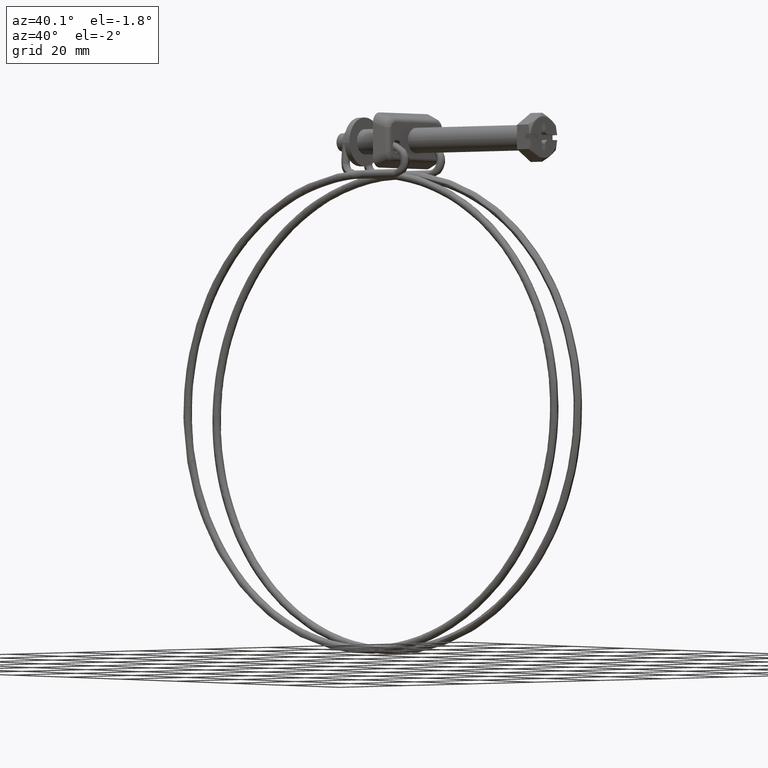
[diagram: clean part render]
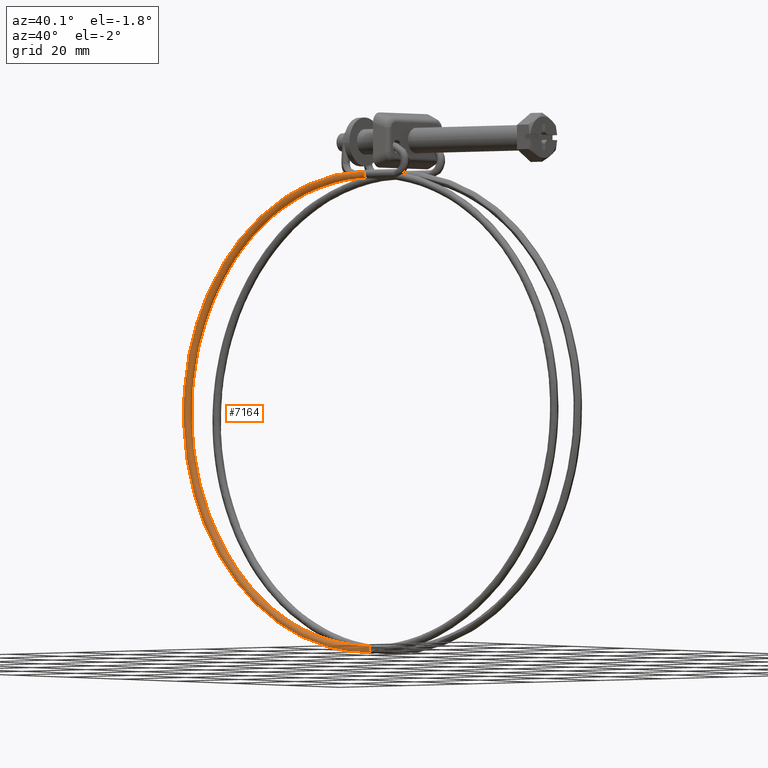
[diagram: same view with one face highlighted and labeled with its STEP entity id]
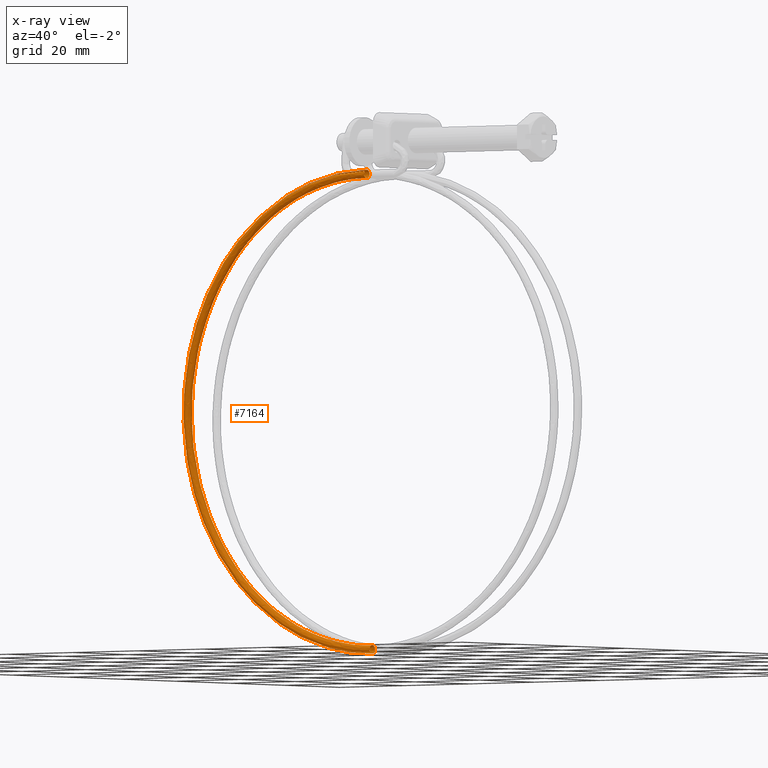
[diagram: x-ray of the same camera — body ghosted, the highlighted face saturated]
A machine part, auxiliary view. The second image highlights one B-rep face of the part: STEP entity #7164.
The next image is the same camera in x-ray: the body ghosted, the highlighted face saturated — about 0% of this face is hidden behind the body in this view.
In plain terms, the highlighted face is a freeform B-spline surface patch.
Its self-contained STEP definition (entity closure, byte-faithful):
#4390=CARTESIAN_POINT('',(-45.149999998808632,-5.310976448653545,-7.892637520432912));
#4391=VERTEX_POINT('',#4390);
#4392=CARTESIAN_POINT('',(-45.150000000000063,-5.975868420241270,-6.907995056497095));
#4393=VERTEX_POINT('',#4392);
#4394=CARTESIAN_POINT('',(-45.149999998808632,-5.310976448653545,-7.892637520432912));
#4395=CARTESIAN_POINT('',(-45.149999998829692,-5.309785185155874,-7.866484783872031));
#4396=CARTESIAN_POINT('',(-45.149999998851392,-5.309644575459286,-7.840279786883396));
#4397=CARTESIAN_POINT('',(-45.149999999096387,-5.319957059162829,-7.552379721657101));
#4398=CARTESIAN_POINT('',(-45.149999999375012,-5.436972750022997,-7.296118689215141));
#4399=CARTESIAN_POINT('',(-45.149999999763999,-5.728292555442175,-7.024810893571111));
#4400=CARTESIAN_POINT('',(-45.149999999890113,-5.847547963914315,-6.953617412476815));
#4401=CARTESIAN_POINT('',(-45.150000000000063,-5.975868420241270,-6.907995056497095));
#4402=B_SPLINE_CURVE_WITH_KNOTS('',3,(#4394,#4395,#4396,#4397,#4398,#4399,#4400,#4401),.UNSPECIFIED.,.F.,.U.,(4,2,2,4),(0.737494791658560,0.750000000000000,0.875000000000000,0.940036109681438),.UNSPECIFIED.);
#4403=EDGE_CURVE('',#4391,#4393,#4402,.T.);
#4459=CARTESIAN_POINT('',(-45.150000000000027,-6.345886880956226,-6.850644943452951));
#4460=VERTEX_POINT('',#4459);
#4461=CARTESIAN_POINT('',(-45.150000000000063,-5.975868420241270,-6.907995056497095));
#4462=CARTESIAN_POINT('',(-45.150000000000063,-6.094243663932558,-6.866122050416879));
#4463=CARTESIAN_POINT('',(-45.150000000000041,-6.220325795856351,-6.845986976392022));
#4464=CARTESIAN_POINT('',(-45.150000000000027,-6.345886880956226,-6.850644943452951));
#4465=B_SPLINE_CURVE_WITH_KNOTS('',3,(#4461,#4462,#4463,#4464),.UNSPECIFIED.,.F.,.U.,(4,4),(0.940036109681439,1.0),.UNSPECIFIED.);
#4466=EDGE_CURVE('',#4393,#4460,#4465,.T.);
#4468=CARTESIAN_POINT('',(-45.150000000000027,-7.063047293310707,-7.192061947471702));
#4469=VERTEX_POINT('',#4468);
#4479=CARTESIAN_POINT('',(-45.150000000000063,-6.274124154055738,-8.849357056546729));
#4480=VERTEX_POINT('',#4479);
#4481=CARTESIAN_POINT('',(-45.150000000000027,-7.063047293310707,-7.192061947471702));
#4482=CARTESIAN_POINT('',(-45.150000000000063,-7.228084872618280,-7.381473228365365));
#4483=CARTESIAN_POINT('',(-45.150000000000070,-7.318379524562507,-7.634717340918451));
#4484=CARTESIAN_POINT('',(-45.150000000000063,-7.299967855068201,-8.147513167247430));
#4485=CARTESIAN_POINT('',(-45.150000000000070,-7.182928284423263,-8.403665846680108));
#4486=CARTESIAN_POINT('',(-45.150000000000063,-6.799641728569234,-8.760382952955649));
#4487=CARTESIAN_POINT('',(-45.150000000000070,-6.535754957853087,-8.858750775531403));
#4488=CARTESIAN_POINT('',(-45.150000000000063,-6.274124154055738,-8.849357056546729));
#4489=B_SPLINE_CURVE_WITH_KNOTS('',3,(#4481,#4482,#4483,#4484,#4485,#4486,#4487,#4488),.UNSPECIFIED.,.F.,.U.,(4,2,2,4),(0.130000262351479,0.250000000000000,0.375000000000000,0.500000000000000),.UNSPECIFIED.);
#4490=EDGE_CURVE('',#4469,#4480,#4489,.T.);
#4492=CARTESIAN_POINT('',(-45.150000000000063,-6.274124154055738,-8.849357056546729));
#4493=CARTESIAN_POINT('',(-45.149999999831351,-6.012484647438415,-8.839963733500936));
#4494=CARTESIAN_POINT('',(-45.149999999599473,-5.756320006590457,-8.722924707046202));
#4495=CARTESIAN_POINT('',(-45.149999999163242,-5.417423685828121,-8.358811487846479));
#4496=CARTESIAN_POINT('',(-45.149999998960773,-5.321684467844493,-8.127829187017897));
#4497=CARTESIAN_POINT('',(-45.149999998808632,-5.310976448653545,-7.892637520432912));
#4498=B_SPLINE_CURVE_WITH_KNOTS('',3,(#4492,#4493,#4494,#4495,#4496,#4497),.UNSPECIFIED.,.F.,.U.,(4,2,4),(0.500000000000000,0.625000000000000,0.737494791658560),.UNSPECIFIED.);
#4499=EDGE_CURVE('',#4480,#4391,#4498,.T.);
#6144=CARTESIAN_POINT('',(-45.149999999935943,-3.302485887030367,-119.780271342113590));
#6145=VERTEX_POINT('',#6144);
#6146=CARTESIAN_POINT('',(-45.149999999990129,-4.287435984471163,-120.849920191922910));
#6147=VERTEX_POINT('',#6146);
#6148=CARTESIAN_POINT('',(-45.149999999935943,-3.302485887030367,-119.780271342113590));
#6149=CARTESIAN_POINT('',(-45.149999999936540,-3.300804588166401,-119.803466287267500));
#6150=CARTESIAN_POINT('',(-45.149999999937151,-3.299953544918444,-119.826725569221690));
#6151=CARTESIAN_POINT('',(-45.149999999944967,-3.299960689535963,-120.111797701208100));
#6152=CARTESIAN_POINT('',(-45.149999999954822,-3.407742793961565,-120.371985962488690));
#6153=CARTESIAN_POINT('',(-45.149999999974163,-3.775038524062515,-120.739265955749000));
#6154=CARTESIAN_POINT('',(-45.149999999983542,-4.029889019310383,-120.846533327676200));
#6155=CARTESIAN_POINT('',(-45.149999999990129,-4.287435984471163,-120.849920191922910));
#6156=B_SPLINE_CURVE_WITH_KNOTS('',3,(#6148,#6149,#6150,#6151,#6152,#6153,#6154,#6155),.UNSPECIFIED.,.F.,.U.,(4,2,2,4),(0.738888458198402,0.750000000000000,0.875000000000000,0.997999815404182),.UNSPECIFIED.);
#6157=EDGE_CURVE('',#6145,#6147,#6156,.T.);
#6247=CARTESIAN_POINT('',(-45.150000000000013,-4.300002000000009,-118.850001000000010));
#6248=VERTEX_POINT('',#6247);
#6249=CARTESIAN_POINT('',(-45.150000000000013,-4.300002000000009,-118.850001000000010));
#6250=CARTESIAN_POINT('',(-45.149999999991010,-4.038195655369277,-118.850000495566110));
#6251=CARTESIAN_POINT('',(-45.149999999978633,-3.777998799462706,-118.957772896960290));
#6252=CARTESIAN_POINT('',(-45.149999999955142,-3.424196145409652,-119.311556064556400));
#6253=CARTESIAN_POINT('',(-45.149999999944150,-3.319730377688063,-119.542534340343100));
#6254=CARTESIAN_POINT('',(-45.149999999935943,-3.302485887030367,-119.780271342113590));
#6255=B_SPLINE_CURVE_WITH_KNOTS('',3,(#6249,#6250,#6251,#6252,#6253,#6254),.UNSPECIFIED.,.F.,.U.,(4,2,4),(0.500000000000000,0.625000000000000,0.738888458198402),.UNSPECIFIED.);
#6256=EDGE_CURVE('',#6248,#6145,#6255,.T.);
#6258=CARTESIAN_POINT('',(-45.150000000000013,-5.028951109210285,-120.534536542634600));
#6259=VERTEX_POINT('',#6258);
#6260=CARTESIAN_POINT('',(-45.150000000000013,-5.028951109210285,-120.534536542634600));
#6261=CARTESIAN_POINT('',(-45.150000000000013,-5.200678748661184,-120.351169005261300));
#6262=CARTESIAN_POINT('',(-45.150000000000013,-5.300002000000000,-120.101327862820100));
#6263=CARTESIAN_POINT('',(-45.150000000000013,-5.300002000000000,-119.588201612201000));
#6264=CARTESIAN_POINT('',(-45.150000000000013,-5.192228903609820,-119.328014341236600));
#6265=CARTESIAN_POINT('',(-45.150000000000013,-4.821988658763289,-118.957774096390200));
#6266=CARTESIAN_POINT('',(-45.150000000000013,-4.561801387799160,-118.850001000000010));
#6267=CARTESIAN_POINT('',(-45.150000000000013,-4.300002000000009,-118.850001000000010));
#6268=B_SPLINE_CURVE_WITH_KNOTS('',3,(#6260,#6261,#6262,#6263,#6264,#6265,#6266,#6267),.UNSPECIFIED.,.F.,.U.,(4,2,2,4),(0.130000262351228,0.250000000000000,0.375000000000000,0.500000000000000),.UNSPECIFIED.);
#6269=EDGE_CURVE('',#6259,#6248,#6268,.T.);
#6271=CARTESIAN_POINT('',(-45.150000000000013,-4.300002000000009,-120.850001000000010));
#6272=VERTEX_POINT('',#6271);
#6282=CARTESIAN_POINT('',(-45.149999999990129,-4.287435984471163,-120.849920191922910));
#6283=CARTESIAN_POINT('',(-45.149999999993419,-4.291624042898426,-120.849974639911810));
#6284=CARTESIAN_POINT('',(-45.149999999996723,-4.295812815059945,-120.850001617475900));
#6285=CARTESIAN_POINT('',(-45.150000000000013,-4.300002000000009,-120.850001000000010));
#6286=B_SPLINE_CURVE_WITH_KNOTS('',3,(#6282,#6283,#6284,#6285),.UNSPECIFIED.,.F.,.U.,(4,4),(0.997999815404182,1.0),.UNSPECIFIED.);
#6287=EDGE_CURVE('',#6147,#6272,#6286,.T.);
#6823=CARTESIAN_POINT('',(-45.150000000000013,-7.063046210862019,-7.192060705160640));
#6824=CARTESIAN_POINT('',(-45.150000000000013,-7.228084477801457,-7.381472121046641));
#6825=CARTESIAN_POINT('',(-45.150000000000013,-7.318379544278305,-7.634716791804443));
#6826=CARTESIAN_POINT('',(-45.150000000000013,-7.299967855068440,-8.147513167247249));
#6827=CARTESIAN_POINT('',(-45.150000000000013,-7.182928284423550,-8.403665846679949));
#6828=CARTESIAN_POINT('',(-45.150000000000013,-6.799641728569591,-8.760382952955560));
#6829=CARTESIAN_POINT('',(-45.150000000000013,-6.535754957853460,-8.858750775531361));
#6830=CARTESIAN_POINT('',(-45.150000000000013,-6.012493350258760,-8.839963337562111));
#6831=CARTESIAN_POINT('',(-45.150000000000013,-5.756340670826060,-8.722923766917230));
#6832=CARTESIAN_POINT('',(-45.150000000000013,-5.399623564550450,-8.339637211063280));
#6833=CARTESIAN_POINT('',(-45.150000000000013,-5.301255741974650,-8.075750440347139));
#6834=CARTESIAN_POINT('',(-45.150000000000013,-5.320043179943900,-7.552488832752430));
#6835=CARTESIAN_POINT('',(-45.150000000000013,-5.437082750588780,-7.296336153319750));
#6836=CARTESIAN_POINT('',(-45.150000000000013,-5.820369306442751,-6.939619047044130));
#6837=CARTESIAN_POINT('',(-45.150000000000013,-6.084256077158881,-6.841251224468330));
#6838=CARTESIAN_POINT('',(-45.150000000000013,-6.345886880956230,-6.850644943452954));
#6839=CARTESIAN_POINT('',(-52.569601323664919,-7.063045612869111,-7.192094025868835));
#6840=CARTESIAN_POINT('',(-52.545190733792772,-7.228083882754371,-7.381505277632877));
#6841=CARTESIAN_POINT('',(-52.512247266985959,-7.318378953196755,-7.634749727338893));
#6842=CARTESIAN_POINT('',(-52.445067019135003,-7.299967272067920,-8.147545652938661));
#6843=CARTESIAN_POINT('',(-52.411255670750897,-7.182927705470230,-8.403698106511040));
#6844=CARTESIAN_POINT('',(-52.363652520550303,-6.799641155313990,-8.760414895408751));
#6845=CARTESIAN_POINT('',(-52.350153850870598,-6.535754386210360,-8.858782628087749));
#6846=CARTESIAN_POINT('',(-52.351384103616013,-6.012492778478149,-8.839995198309250));
#6847=CARTESIAN_POINT('',(-52.366105450224900,-5.756340097282960,-8.722955725695408));
#6848=CARTESIAN_POINT('',(-52.415448440503702,-5.399622985096880,-8.339669498836289));
#6849=CARTESIAN_POINT('',(-52.449766238241487,-5.301255158411570,-8.075782957438731));
#6850=CARTESIAN_POINT('',(-52.518317511558699,-5.320042588139490,-7.552521808965549));
#6851=CARTESIAN_POINT('',(-52.552128859865398,-5.437082154711059,-7.296369356444190));
#6852=CARTESIAN_POINT('',(-52.599732010063299,-5.820368704811860,-6.939652570380449));
#6853=CARTESIAN_POINT('',(-52.613230679704003,-6.084255473903500,-6.841284838625090));
#6854=CARTESIAN_POINT('',(-52.612615553388601,-6.345886277776811,-6.850678553465274));
#6855=CARTESIAN_POINT('',(-59.983811976142420,-7.036574289349323,-8.667110466495776));
#6856=CARTESIAN_POINT('',(-59.935008696228842,-7.201699651830744,-8.851668805982547));
#6857=CARTESIAN_POINT('',(-59.869145919388536,-7.292112258655011,-9.098363976572557));
#6858=CARTESIAN_POINT('',(-59.734834685715612,-7.273940264597161,-9.597804227383550));
#6859=CARTESIAN_POINT('',(-59.667236782376399,-7.157021330845880,-9.847234863003349));
#6860=CARTESIAN_POINT('',(-59.572065388459187,-6.773904620216510,-10.194487973125900));
#6861=CARTESIAN_POINT('',(-59.545077947536299,-6.510066011963880,-10.290172121367940));
#6862=CARTESIAN_POINT('',(-59.547537550697903,-5.986800014894601,-10.271629270288500));
#6863=CARTESIAN_POINT('',(-59.576969449124597,-5.730594810565200,-10.157516454896500));
#6864=CARTESIAN_POINT('',(-59.675619247243603,-5.373701651417510,-9.784039793025222));
#6865=CARTESIAN_POINT('',(-59.744229678050502,-5.275211384971970,-9.526975753698359));
#6866=CARTESIAN_POINT('',(-59.881281957308701,-5.293754236048240,-9.017342844504089));
#6867=CARTESIAN_POINT('',(-59.948879860749599,-5.410673169799510,-8.767912208986020));
#6868=CARTESIAN_POINT('',(-60.044051254666797,-5.793789880428890,-8.420659098761750));
#6869=CARTESIAN_POINT('',(-60.071038695640603,-6.057628488687869,-8.324974950621419));
#6870=CARTESIAN_POINT('',(-60.069808893983499,-6.319261487222510,-8.334246376161143));
#6871=CARTESIAN_POINT('',(-73.691036042301050,-6.934678229661358,-14.344890921574070));
#6872=CARTESIAN_POINT('',(-73.597139032479021,-7.100138807600729,-14.510770621396251));
#6873=CARTESIAN_POINT('',(-73.470419725671505,-7.191003806568837,-14.732257915113941));
#6874=CARTESIAN_POINT('',(-73.212006290144203,-7.173754357101650,-15.180292786618800));
#6875=CARTESIAN_POINT('',(-73.081948617460398,-7.057299733578841,-15.403851454410299));
#6876=CARTESIAN_POINT('',(-72.898839832070010,-6.674836727426730,-15.714679304572551));
#6877=CARTESIAN_POINT('',(-72.846916272500295,-6.411183487998059,-15.800034460737599));
#6878=CARTESIAN_POINT('',(-72.851648523989795,-5.887900596644800,-15.782432981689450));
#6879=CARTESIAN_POINT('',(-72.908275194468914,-5.631493233216160,-15.679584733285299));
#6880=CARTESIAN_POINT('',(-73.098076394043801,-5.273922477451700,-15.343864633002401));
#6881=CARTESIAN_POINT('',(-73.230082159034495,-5.174960946012220,-15.113060088994750));
#6882=CARTESIAN_POINT('',(-73.493769338144006,-5.192562425063550,-14.655881648887121));
#6883=CARTESIAN_POINT('',(-73.623827010726004,-5.309017048586370,-14.432322980993900));
#6884=CARTESIAN_POINT('',(-73.806935796116420,-5.691480054738480,-14.121495130933400));
#6885=CARTESIAN_POINT('',(-73.858859355635303,-5.955133294160780,-14.036139974666600));
#6886=CARTESIAN_POINT('',(-73.856493229966787,-6.216774739837410,-14.044940714190680));
#6887=CARTESIAN_POINT('',(-79.977444432651097,-6.859294202630906,-18.545386568952260));
#6888=CARTESIAN_POINT('',(-79.862868217331041,-7.025002765669289,-18.697448218061769));
#6889=CARTESIAN_POINT('',(-79.708241157166455,-7.116202434501211,-18.900287273475161));
#6890=CARTESIAN_POINT('',(-79.392916595920994,-7.099635463424330,-19.310293564662800));
#6891=CARTESIAN_POINT('',(-79.234215952277509,-6.983524326496590,-19.514712714396449));
#6892=CARTESIAN_POINT('',(-79.010780598307107,-6.601544916670800,-19.798593950309751));
#6893=CARTESIAN_POINT('',(-78.947421765699914,-6.338028809086320,-19.876307943318750));
#6894=CARTESIAN_POINT('',(-78.953196214223311,-5.814733419699250,-19.859402870810399));
#6895=CARTESIAN_POINT('',(-79.022293937435194,-5.558176503363451,-19.764887903871301));
#6896=CARTESIAN_POINT('',(-79.253895594827497,-5.200104476384791,-19.457099285104501));
#6897=CARTESIAN_POINT('',(-79.414973364787599,-5.100794313374460,-19.245720944122102));
#6898=CARTESIAN_POINT('',(-79.736733121160597,-5.117699385901890,-18.827347177604100));
#6899=CARTESIAN_POINT('',(-79.895433764854999,-5.233810522829629,-18.622928027819551));
#6900=CARTESIAN_POINT('',(-80.118869118876205,-5.615789932649060,-18.339046791855449));
#6901=CARTESIAN_POINT('',(-80.182227951534301,-5.879306040246259,-18.261332798948150));
#6902=CARTESIAN_POINT('',(-80.179340727221742,-6.140953734936620,-18.269785335202329));
#6903=CARTESIAN_POINT('',(-90.468374557061011,-6.671017474330951,-29.036409786810939));
#6904=CARTESIAN_POINT('',(-90.319291330350708,-6.837345321555898,-29.153964118268060));
#6905=CARTESIAN_POINT('',(-90.118095113535901,-6.929380749317962,-29.310233603723599));
#6906=CARTESIAN_POINT('',(-89.707803999124692,-6.914518106810380,-29.625272499057900));
#6907=CARTESIAN_POINT('',(-89.501307354206602,-6.799264746521030,-29.781895223576900));
#6908=CARTESIAN_POINT('',(-89.210579794140102,-6.418493004304830,-29.998483656194900));
#6909=CARTESIAN_POINT('',(-89.128139130485010,-6.155319351062020,-30.057115648966601));
#6910=CARTESIAN_POINT('',(-89.135652674494608,-5.631992750785461,-30.041949687205150));
#6911=CARTESIAN_POINT('',(-89.225560614843005,-5.375062361413340,-29.968245122157700));
#6912=CARTESIAN_POINT('',(-89.526913930744513,-5.015738527973790,-29.730208780769399));
#6913=CARTESIAN_POINT('',(-89.736503622947708,-4.915557739972860,-29.567342792379701));
#6914=CARTESIAN_POINT('',(-90.155168025408102,-4.930723701715291,-29.245874531834499));
#6915=CARTESIAN_POINT('',(-90.361664670275303,-5.045977062004640,-29.089251807366349));
#6916=CARTESIAN_POINT('',(-90.652392230291014,-5.426748804227200,-28.872663374799199));
#6917=CARTESIAN_POINT('',(-90.734832893895202,-5.689922457457290,-28.814031381925751));
#6918=CARTESIAN_POINT('',(-90.731076121941257,-5.951585757598750,-28.821614362806500));
#6919=CARTESIAN_POINT('',(-94.668770915226091,-6.558198846717167,-35.322809876704007));
#6920=CARTESIAN_POINT('',(-94.505873329660801,-6.724897747214928,-35.419688639526498));
#6921=CARTESIAN_POINT('',(-94.286033856974399,-6.817433932258609,-35.548055279698239));
#6922=CARTESIAN_POINT('',(-93.837724322889088,-6.803592463374410,-35.806193058167302));
#6923=CARTESIAN_POINT('',(-93.612093273601587,-6.688853052615320,-35.934177848980262));
#6924=CARTESIAN_POINT('',(-93.294426298927306,-6.308804902257091,-36.110446805200503));
#6925=CARTESIAN_POINT('',(-93.204346513663182,-6.045836435605000,-36.157645535951652));
#6926=CARTESIAN_POINT('',(-93.212556278023015,-5.522491134872211,-36.143521588085200));
#6927=CARTESIAN_POINT('',(-93.310795273387512,-5.265336973606820,-36.082285882403752));
#6928=CARTESIAN_POINT('',(-93.640072608130794,-4.905263101854080,-35.886042647552550));
#6929=CARTESIAN_POINT('',(-93.869083312921305,-4.804560666038011,-35.752243551406949));
#6930=CARTESIAN_POINT('',(-94.326542021171605,-4.818684613882221,-35.488837655009952));
#6931=CARTESIAN_POINT('',(-94.552173070408301,-4.933424024647660,-35.360852864247853));
#6932=CARTESIAN_POINT('',(-94.869840045133401,-5.313472174996360,-35.184583907976702));
#6933=CARTESIAN_POINT('',(-94.959919830295789,-5.576440641654810,-35.137385177276450));
#6934=CARTESIAN_POINT('',(-94.955814948115886,-5.838113292022791,-35.144447151235127));
#6935=CARTESIAN_POINT('',(-100.346373026824590,-6.312205795045729,-49.029861404682563));
#6936=CARTESIAN_POINT('',(-100.164803691350600,-6.479713685080784,-49.081662222034403));
#6937=CARTESIAN_POINT('',(-99.919765639791279,-6.573341647128340,-49.149193634374683));
#6938=CARTESIAN_POINT('',(-99.420069687229287,-6.561726593827920,-49.283272651354693));
#6939=CARTESIAN_POINT('',(-99.168576213329288,-6.448107722445941,-49.348819536139800));
#6940=CARTESIAN_POINT('',(-98.814497414186903,-6.069637184562210,-49.437181882261513));
#6941=CARTESIAN_POINT('',(-98.714092446924099,-5.807116076306969,-49.459453222963212));
#6942=CARTESIAN_POINT('',(-98.723243236161011,-5.283730003860060,-49.447601127784097));
#6943=CARTESIAN_POINT('',(-98.832742643535298,-5.026087963546900,-49.413550675094903));
#6944=CARTESIAN_POINT('',(-99.199762612955411,-4.664378819429460,-49.308426935232397));
#6945=CARTESIAN_POINT('',(-99.455023127270607,-4.562539060022320,-49.238000982451112));
#6946=CARTESIAN_POINT('',(-99.964916956415507,-4.574391155223649,-49.101185659002098));
#6947=CARTESIAN_POINT('',(-100.216410430366390,-4.688010026599270,-49.035638774166102));
#6948=CARTESIAN_POINT('',(-100.570489229458000,-5.066480564492540,-48.947276428095300));
#6949=CARTESIAN_POINT('',(-100.670894196822400,-5.329001672741420,-48.925005087342797));
#6950=CARTESIAN_POINT('',(-100.666318802204000,-5.590694708963285,-48.930931134906899));
#6951=CARTESIAN_POINT('',(-101.821346606085600,-6.179128124653448,-56.445121604782599));
#6952=CARTESIAN_POINT('',(-101.634927061012410,-6.347073633965558,-56.472537709296240));
#6953=CARTESIAN_POINT('',(-101.383343378250600,-6.441292187877211,-56.507160577191542));
#6954=CARTESIAN_POINT('',(-100.870299190975400,-6.430881504139280,-56.574130562342397));
#6955=CARTESIAN_POINT('',(-100.612087644021600,-6.317868783518891,-56.605901941329400));
#6956=CARTESIAN_POINT('',(-100.248550439398200,-5.940251648028309,-56.646711600029498));
#6957=CARTESIAN_POINT('',(-100.145463383020400,-5.677972536311110,-56.655498580729798));
#6958=CARTESIAN_POINT('',(-100.154858614626410,-5.154564408584200,-56.644875434039413));
#6959=CARTESIAN_POINT('',(-100.267283048345400,-4.896658452277280,-56.625530722249003));
#6960=CARTESIAN_POINT('',(-100.644107116927400,-4.534064714885489,-56.569697665472503));
#6961=CARTESIAN_POINT('',(-100.906186332213000,-4.431609725383735,-56.533553131046503));
#6962=CARTESIAN_POINT('',(-101.429700809024400,-4.442232872055089,-56.465216411504791));
#6963=CARTESIAN_POINT('',(-101.687912355978000,-4.555245592675480,-56.433445032517703));
#6964=CARTESIAN_POINT('',(-102.051449560601400,-4.932862728162890,-56.392635373817697));
#6965=CARTESIAN_POINT('',(-102.154536616979200,-5.195141839883270,-56.383848393219097));
#6966=CARTESIAN_POINT('',(-102.149839001176300,-5.456845903746720,-56.389159966538848));
#6967=CARTESIAN_POINT('',(-101.821346606085600,-5.912868069092447,-71.281476845683329));
#6968=CARTESIAN_POINT('',(-101.634927061012410,-6.081689158202697,-71.260104509450130));
#6969=CARTESIAN_POINT('',(-101.383343378250600,-6.177089356401092,-71.228884626900594));
#6970=CARTESIAN_POINT('',(-100.870299190975400,-6.169088350929161,-71.161584217106210));
#6971=CARTESIAN_POINT('',(-100.612087644021600,-6.057288404514471,-71.125778246587714));
#6972=CARTESIAN_POINT('',(-100.248550439398200,-5.681378739304570,-71.071445449316798));
#6973=CARTESIAN_POINT('',(-100.145463383020400,-5.419583809341500,-71.053253194802011));
#6974=CARTESIAN_POINT('',(-100.154858614626410,-4.896131553875411,-71.045088903523194));
#6975=CARTESIAN_POINT('',(-100.267283048345400,-4.637697559785500,-71.055167141058902));
#6976=CARTESIAN_POINT('',(-100.644107116927400,-4.273333946055155,-71.097953886828009));
#6977=CARTESIAN_POINT('',(-100.906186332213000,-4.169648016590915,-71.130398921501993));
#6978=CARTESIAN_POINT('',(-101.429700809024400,-4.177812307888805,-71.199072809047308));
#6979=CARTESIAN_POINT('',(-101.687912355978000,-4.289612254303495,-71.234878779565804));
#6980=CARTESIAN_POINT('',(-102.051449560601400,-4.665521919516580,-71.289211576836706));
#6981=CARTESIAN_POINT('',(-102.154536616979200,-4.927316849476461,-71.307403831249701));
#6982=CARTESIAN_POINT('',(-102.149839001176300,-5.189042977209511,-71.311485976914554));
#6983=CARTESIAN_POINT('',(-100.346373026875300,-5.779790398690303,-78.696737045625241));
#6984=CARTESIAN_POINT('',(-100.164803691401400,-5.949049107075497,-78.650979996516298));
#6985=CARTESIAN_POINT('',(-99.919765639843021,-6.045039897146658,-78.586851569614552));
#6986=CARTESIAN_POINT('',(-99.420069687330894,-6.038243261230980,-78.452442127941211));
#6987=CARTESIAN_POINT('',(-99.168576213278286,-5.927049465577890,-78.382860651624497));
#6988=CARTESIAN_POINT('',(-98.814497414288510,-5.551993202764300,-78.280975166931995));
#6989=CARTESIAN_POINT('',(-98.714092446923885,-5.290440269336100,-78.249298552365090));
#6990=CARTESIAN_POINT('',(-98.723243236110008,-4.766965958586840,-78.242363209574890));
#6991=CARTESIAN_POINT('',(-98.832742643535099,-4.508268048509520,-78.267147188111110));
#6992=CARTESIAN_POINT('',(-99.199762613006200,-4.143019841508000,-78.359224616966202));
#6993=CARTESIAN_POINT('',(-99.455023127372201,-4.038718681942795,-78.425951069995492));
#6994=CARTESIAN_POINT('',(-99.964916956568004,-4.045654024713890,-78.563103561448088));
#6995=CARTESIAN_POINT('',(-100.216410430417000,-4.156847820370165,-78.632685037815492));
#6996=CARTESIAN_POINT('',(-100.570489229508600,-4.531904083180571,-78.734570522457304));
#6997=CARTESIAN_POINT('',(-100.670894196873210,-4.793457016608770,-78.766247137024109));
#6998=CARTESIAN_POINT('',(-100.666318802280200,-5.055194171983406,-78.769714808393815));
#6999=CARTESIAN_POINT('',(-94.668770915175003,-5.533797347038584,-92.403788573919783));
#7000=CARTESIAN_POINT('',(-94.505873329609784,-5.703865044965296,-92.312953579415279));
#7001=CARTESIAN_POINT('',(-94.286033856922387,-5.800947612022994,-92.187989924496506));
#7002=CARTESIAN_POINT('',(-93.837724322787196,-5.796377391703570,-91.929521721433801));
#7003=CARTESIAN_POINT('',(-93.612093273652306,-5.686304135427580,-91.797502339089405));
#7004=CARTESIAN_POINT('',(-93.294426298825414,-5.312825485082140,-91.607710244298204));
#7005=CARTESIAN_POINT('',(-93.204346513663097,-5.051719910057150,-91.551106239783493));
#7006=CARTESIAN_POINT('',(-93.212556278073706,-4.528204827600121,-91.546442749680793));
#7007=CARTESIAN_POINT('',(-93.310795273387299,-4.269019038462324,-91.598411981005697));
#7008=CARTESIAN_POINT('',(-93.640072608079805,-3.902135559089740,-91.781608904849506));
#7009=CARTESIAN_POINT('',(-93.869083312819399,-3.796697075946175,-91.911708501243098));
#7010=CARTESIAN_POINT('',(-94.326542021018795,-3.801360566068040,-92.175451565643698));
#7011=CARTESIAN_POINT('',(-94.552173070357213,-3.911433822340850,-92.307470947937304));
#7012=CARTESIAN_POINT('',(-94.869840045082398,-4.284912472689470,-92.497263042779295));
#7013=CARTESIAN_POINT('',(-94.959919830244701,-4.546018047714460,-92.553867047294005));
#7014=CARTESIAN_POINT('',(-94.955814948039404,-4.807775588942975,-92.556198792370793));
#7015=CARTESIAN_POINT('',(-90.468374556962374,-5.420978719418759,-98.690188663927771));
#7016=CARTESIAN_POINT('',(-90.319291330244425,-5.591417470613590,-98.578678100728737));
#7017=CARTESIAN_POINT('',(-90.118095113336508,-5.689000794964503,-98.425811600618232));
#7018=CARTESIAN_POINT('',(-89.707803998974697,-5.685451748262210,-98.110442280591101));
#7019=CARTESIAN_POINT('',(-89.501307354107297,-5.575892441516480,-97.949784964693507));
#7020=CARTESIAN_POINT('',(-89.210579793938606,-5.203137383035361,-97.719673393403212));
#7021=CARTESIAN_POINT('',(-89.128139130385193,-4.942236994591551,-97.651636126867984));
#7022=CARTESIAN_POINT('',(-89.135652674293098,-4.418703211675110,-97.648014650558508));
#7023=CARTESIAN_POINT('',(-89.225560614641495,-4.159293650650390,-97.712452741503796));
#7024=CARTESIAN_POINT('',(-89.526913930543500,-3.791660132964635,-97.937442771782500));
#7025=CARTESIAN_POINT('',(-89.736503622797812,-3.685700002002755,-98.096609260369107));
#7026=CARTESIAN_POINT('',(-90.155168025207786,-3.689321478229585,-98.418414688968312));
#7027=CARTESIAN_POINT('',(-90.361664670075314,-3.798880784972140,-98.579072004967600));
#7028=CARTESIAN_POINT('',(-90.652392230193001,-4.171635843453255,-98.809183576054394));
#7029=CARTESIAN_POINT('',(-90.734832893797304,-4.432536231900250,-98.877220842793008));
#7030=CARTESIAN_POINT('',(-90.731076121792498,-4.694303123358470,-98.879031580846046));
#7031=CARTESIAN_POINT('',(-79.977444432749152,-5.232701991111187,-109.181211881240600));
#7032=CARTESIAN_POINT('',(-79.862868217436684,-5.403760026497751,-109.035194000433900));
#7033=CARTESIAN_POINT('',(-79.708241157365137,-5.502179109772944,-108.835757930367000));
#7034=CARTESIAN_POINT('',(-79.392916596070293,-5.500334391639971,-108.425421214585200));
#7035=CARTESIAN_POINT('',(-79.234215952376204,-5.391632861532640,-108.216967473167200));
#7036=CARTESIAN_POINT('',(-79.010780598507893,-5.020085470654760,-107.919563098784390));
#7037=CARTESIAN_POINT('',(-78.947421765799007,-4.759527536565340,-107.832443831910000));
#7038=CARTESIAN_POINT('',(-78.953196214424111,-4.235962542759415,-107.830561466551000));
#7039=CARTESIAN_POINT('',(-79.022293937635894,-3.976179508698376,-107.915809959082790));
#7040=CARTESIAN_POINT('',(-79.253895595027913,-3.607294184558075,-108.210552266944210));
#7041=CARTESIAN_POINT('',(-79.414973364936898,-3.500463428599225,-108.418231108225600));
#7042=CARTESIAN_POINT('',(-79.736733121360203,-3.502345794041030,-108.836942042697000));
#7043=CARTESIAN_POINT('',(-79.895433765054293,-3.611047324151545,-109.045395784013190));
#7044=CARTESIAN_POINT('',(-80.118869118973507,-3.982594715029415,-109.342800158599400));
#7045=CARTESIAN_POINT('',(-80.182227951631504,-4.243152649115656,-109.429919425270400));
#7046=CARTESIAN_POINT('',(-80.179340727369791,-4.504935146018623,-109.430860608051700));
#7047=CARTESIAN_POINT('',(-73.691036042257011,-5.157317964084776,-113.381707528740900));
#7048=CARTESIAN_POINT('',(-73.597139032412301,-5.328623984567304,-113.221871597131790));
#7049=CARTESIAN_POINT('',(-73.470419725604700,-5.427377737703441,-113.003787288762790));
#7050=CARTESIAN_POINT('',(-73.212006290077099,-5.426215497963880,-112.555421992764000));
#7051=CARTESIAN_POINT('',(-73.081948617444013,-5.317857454451611,-112.327828733339400));
#7052=CARTESIAN_POINT('',(-72.898839832053412,-4.946793659906410,-112.003477744759000));
#7053=CARTESIAN_POINT('',(-72.846916272534401,-4.686372857645270,-111.908717314678000));
#7054=CARTESIAN_POINT('',(-72.851648523871404,-4.162795365808714,-111.907531355706000));
#7055=CARTESIAN_POINT('',(-72.908275194452301,-3.902862778846880,-112.001113129804390));
#7056=CARTESIAN_POINT('',(-73.098076393976484,-3.533476183487610,-112.323786919334200));
#7057=CARTESIAN_POINT('',(-73.230082158967392,-3.426296795956335,-112.550891963386210));
#7058=CARTESIAN_POINT('',(-73.493769338077300,-3.427482754875845,-113.008407571548200));
#7059=CARTESIAN_POINT('',(-73.623827010710301,-3.535840798389695,-113.236000831074610));
#7060=CARTESIAN_POINT('',(-73.806935796100916,-3.906904592934900,-113.560351819655000));
#7061=CARTESIAN_POINT('',(-73.858859355619899,-4.167325395192854,-113.655112249685200));
#7062=CARTESIAN_POINT('',(-73.856493229875085,-4.429114141109547,-113.655705229171200));
#7063=CARTESIAN_POINT('',(-59.983811976185379,-5.055421904396342,-119.059487984120590));
#7064=CARTESIAN_POINT('',(-59.935008696294460,-5.227063140337751,-118.880973412981600));
#7065=CARTESIAN_POINT('',(-59.869145919454347,-5.326269285629330,-118.637681227734500));
#7066=CARTESIAN_POINT('',(-59.734834685781713,-5.326029590474199,-118.137910552130190));
#7067=CARTESIAN_POINT('',(-59.667236782391697,-5.218135857190400,-117.884445325080610));
#7068=CARTESIAN_POINT('',(-59.572065388474797,-4.847725767116110,-117.523669076234400));
#7069=CARTESIAN_POINT('',(-59.545077947501099,-4.587490333698010,-117.418579654279600));
#7070=CARTESIAN_POINT('',(-59.547537550815200,-4.063895947571115,-117.418335067440790));
#7071=CARTESIAN_POINT('',(-59.576969449140201,-3.803761201497320,-117.523181408629000));
#7072=CARTESIAN_POINT('',(-59.675619247309797,-3.433697009524460,-117.883611759238600));
#7073=CARTESIAN_POINT('',(-59.744229678116596,-3.326046357008775,-118.136976299016990));
#7074=CARTESIAN_POINT('',(-59.881281957374298,-3.326290943900170,-118.646946376164190));
#7075=CARTESIAN_POINT('',(-59.948879860764301,-3.434184677182381,-118.900411603112000));
#7076=CARTESIAN_POINT('',(-60.044051254681300,-3.804594767256670,-119.261187851958200));
#7077=CARTESIAN_POINT('',(-60.071038695654899,-4.064830200677950,-119.366277273963800));
#7078=CARTESIAN_POINT('',(-60.069808894074150,-4.326627393742990,-119.366399567383200));
#7079=CARTESIAN_POINT('',(-52.569601354693482,-5.028950587795457,-120.534537752987800));
#7080=CARTESIAN_POINT('',(-52.545190764652517,-5.200678917306579,-120.351170107197310));
#7081=CARTESIAN_POINT('',(-52.512247297639867,-5.300002600290085,-120.101328422816390));
#7082=CARTESIAN_POINT('',(-52.445067049368198,-5.300002594908690,-119.588201622730000));
#7083=CARTESIAN_POINT('',(-52.411255700809903,-5.192229495819781,-119.328014350647000));
#7084=CARTESIAN_POINT('',(-52.363652550308707,-4.821989247193170,-118.957774101884000));
#7085=CARTESIAN_POINT('',(-52.350153880580599,-4.561801975172901,-118.850001002798000));
#7086=CARTESIAN_POINT('',(-52.351384133214012,-4.038203199723349,-118.850000997303600));
#7087=CARTESIAN_POINT('',(-52.366105479988398,-3.778015929962205,-118.957774090946200));
#7088=CARTESIAN_POINT('',(-52.415448470533200,-3.407775689105015,-119.328014331925400));
#7089=CARTESIAN_POINT('',(-52.449766268484602,-3.300002595475520,-119.588201601719210));
#7090=CARTESIAN_POINT('',(-52.518317542231102,-3.300002600966705,-120.111800377317390));
#7091=CARTESIAN_POINT('',(-52.552128890789497,-3.407775700055595,-120.371987649452000));
#7092=CARTESIAN_POINT('',(-52.599732041290608,-3.778015948680600,-120.742227898166010));
#7093=CARTESIAN_POINT('',(-52.613230711018701,-4.038203220699289,-120.850000997303600));
#7094=CARTESIAN_POINT('',(-52.612615584644693,-4.300002608424079,-120.850001000050800));
#7095=CARTESIAN_POINT('',(-45.150000000000013,-5.028949982883884,-120.534537745304800));
#7096=CARTESIAN_POINT('',(-45.150000000000013,-5.200678314366810,-120.351170097699100));
#7097=CARTESIAN_POINT('',(-45.150000000000013,-5.300002000000000,-120.101328412287200));
#7098=CARTESIAN_POINT('',(-45.150000000000013,-5.300002000000000,-119.588201612201000));
#7099=CARTESIAN_POINT('',(-45.150000000000013,-5.192228903609820,-119.328014341236600));
#7100=CARTESIAN_POINT('',(-45.150000000000013,-4.821988658763289,-118.957774096390200));
#7101=CARTESIAN_POINT('',(-45.150000000000013,-4.561801387799160,-118.850001000000010));
#7102=CARTESIAN_POINT('',(-45.150000000000013,-4.038202612200860,-118.850001000000010));
#7103=CARTESIAN_POINT('',(-45.150000000000013,-3.778015341236725,-118.957774096390200));
#7104=CARTESIAN_POINT('',(-45.150000000000013,-3.407775096390195,-119.328014341236600));
#7105=CARTESIAN_POINT('',(-45.150000000000013,-3.300002000000000,-119.588201612201000));
#7106=CARTESIAN_POINT('',(-45.150000000000013,-3.300002000000000,-120.111800387799210));
#7107=CARTESIAN_POINT('',(-45.150000000000013,-3.407775096390195,-120.371987658763200));
#7108=CARTESIAN_POINT('',(-45.150000000000013,-3.778015341236725,-120.742227903609800));
#7109=CARTESIAN_POINT('',(-45.150000000000013,-4.038202612200860,-120.850001000000010));
#7110=CARTESIAN_POINT('',(-45.150000000000013,-4.300002000000009,-120.850001000000010));
#7111=B_SPLINE_SURFACE_WITH_KNOTS('',3,3,((#6823,#6839,#6855,#6871,#6887,#6903,#6919,#6935,#6951,#6967,#6983,#6999,#7015,#7031,#7047,#7063,#7079,#7095),(#6824,#6840,#6856,#6872,#6888,#6904,#6920,#6936,#6952,#6968,#6984,#7000,#7016,#7032,#7048,#7064,#7080,#7096),(#6825,#6841,#6857,#6873,#6889,#6905,#6921,#6937,#6953,#6969,#6985,#7001,#7017,#7033,#7049,#7065,#7081,#7097),(#6826,#6842,#6858,#6874,#6890,#6906,#6922,#6938,#6954,#6970,#6986,#7002,#7018,#7034,#7050,#7066,#7082,#7098),(#6827,#6843,#6859,#6875,#6891,#6907,#6923,#6939,#6955,#6971,#6987,#7003,#7019,#7035,#7051,#7067,#7083,#7099),(#6828,#6844,#6860,#6876,#6892,#6908,#6924,#6940,#6956,#6972,#6988,#7004,#7020,#7036,#7052,#7068,#7084,#7100),(#6829,#6845,#6861,#6877,#6893,#6909,#6925,#6941,#6957,#6973,#6989,#7005,#7021,#7037,#7053,#7069,#7085,#7101),(#6830,#6846,#6862,#6878,#6894,#6910,#6926,#6942,#6958,#6974,#6990,#7006,#7022,#7038,#7054,#7070,#7086,#7102),(#6831,#6847,#6863,#6879,#6895,#6911,#6927,#6943,#6959,#6975,#6991,#7007,#7023,#7039,#7055,#7071,#7087,#7103),(#6832,#6848,#6864,#6880,#6896,#6912,#6928,#6944,#6960,#6976,#6992,#7008,#7024,#7040,#7056,#7072,#7088,#7104),(#6833,#6849,#6865,#6881,#6897,#6913,#6929,#6945,#6961,#6977,#6993,#7009,#7025,#7041,#7057,#7073,#7089,#7105),(#6834,#6850,#6866,#6882,#6898,#6914,#6930,#6946,#6962,#6978,#6994,#7010,#7026,#7042,#7058,#7074,#7090,#7106),(#6835,#6851,#6867,#6883,#6899,#6915,#6931,#6947,#6963,#6979,#6995,#7011,#7027,#7043,#7059,#7075,#7091,#7107),(#6836,#6852,#6868,#6884,#6900,#6916,#6932,#6948,#6964,#6980,#6996,#7012,#7028,#7044,#7060,#7076,#7092,#7108),(#6837,#6853,#6869,#6885,#6901,#6917,#6933,#6949,#6965,#6981,#6997,#7013,#7029,#7045,#7061,#7077,#7093,#7109),(#6838,#6854,#6870,#6886,#6902,#6918,#6934,#6950,#6966,#6982,#6998,#7014,#7030,#7046,#7062,#7078,#7094,#7110)),.UNSPECIFIED.,.F.,.F.,.U.,(4,2,2,2,2,2,2,4),(4,2,2,2,2,2,2,2,4),(0.0,0.753982236861549,1.539380400258997,2.324778563656444,3.110176727053892,3.895574890451339,4.680973053848787,5.466371217246234),(0.0,22.387846753933811,44.775693507867757,67.163540261801487,89.551387015735401,111.939233769669300,134.327080523603090,156.714927277536700,179.102774031470890),.UNSPECIFIED.);
#7112=ORIENTED_EDGE('',*,*,#6269,.T.);
#7113=ORIENTED_EDGE('',*,*,#6256,.T.);
#7114=ORIENTED_EDGE('',*,*,#6157,.T.);
#7115=ORIENTED_EDGE('',*,*,#6287,.T.);
#7116=CARTESIAN_POINT('',(-45.150000000000013,-6.345886880956230,-6.850644943452954));
#7117=CARTESIAN_POINT('',(-52.612615553388601,-6.345886277776811,-6.850678553465274));
#7118=CARTESIAN_POINT('',(-60.069808893983499,-6.319261487222510,-8.334246376161143));
#7119=CARTESIAN_POINT('',(-73.856493229966787,-6.216774739837410,-14.044940714190680));
#7120=CARTESIAN_POINT('',(-80.179340727221742,-6.140953734936620,-18.269785335202329));
#7121=CARTESIAN_POINT('',(-90.731076121941257,-5.951585757598750,-28.821614362806500));
#7122=CARTESIAN_POINT('',(-94.955814948115886,-5.838113292022791,-35.144447151235127));
#7123=CARTESIAN_POINT('',(-100.666318802204000,-5.590694708963285,-48.930931134906899));
#7124=CARTESIAN_POINT('',(-102.149839001176300,-5.456845903746720,-56.389159966538848));
#7125=CARTESIAN_POINT('',(-102.149839001176300,-5.189042977209511,-71.311485976914554));
#7126=CARTESIAN_POINT('',(-100.666318802280200,-5.055194171983406,-78.769714808393815));
#7127=CARTESIAN_POINT('',(-94.955814948039404,-4.807775588942975,-92.556198792370793));
#7128=CARTESIAN_POINT('',(-90.731076121792498,-4.694303123358470,-98.879031580846046));
#7129=CARTESIAN_POINT('',(-80.179340727369791,-4.504935146018623,-109.430860608051700));
#7130=CARTESIAN_POINT('',(-73.856493229875085,-4.429114141109547,-113.655705229171200));
#7131=CARTESIAN_POINT('',(-60.069808894074150,-4.326627393742990,-119.366399567383200));
#7132=CARTESIAN_POINT('',(-52.612615584644693,-4.300002608424079,-120.850001000050800));
#7133=CARTESIAN_POINT('',(-45.150000000000013,-4.300002000000009,-120.850001000000010));
#7134=B_SPLINE_CURVE_WITH_KNOTS('',3,(#7116,#7117,#7118,#7119,#7120,#7121,#7122,#7123,#7124,#7125,#7126,#7127,#7128,#7129,#7130,#7131,#7132,#7133),.UNSPECIFIED.,.F.,.U.,(4,2,2,2,2,2,2,2,4),(0.064266621762229,0.122750838910627,0.181235056059026,0.239719273207424,0.298203490355823,0.356687707504221,0.415171924652619,0.473656141801017,0.532140358949416),.UNSPECIFIED.);
#7135=EDGE_CURVE('',#4460,#6272,#7134,.T.);
#7136=ORIENTED_EDGE('',*,*,#7135,.F.);
#7137=ORIENTED_EDGE('',*,*,#4466,.F.);
#7138=ORIENTED_EDGE('',*,*,#4403,.F.);
#7139=ORIENTED_EDGE('',*,*,#4499,.F.);
#7140=ORIENTED_EDGE('',*,*,#4490,.F.);
#7141=CARTESIAN_POINT('',(-45.150000000000027,-7.063047293310707,-7.192061947471702));
#7142=CARTESIAN_POINT('',(-52.569601323664941,-7.063046695317810,-7.192095268179179));
#7143=CARTESIAN_POINT('',(-59.983811976142448,-7.036575372369038,-8.667111676987624));
#7144=CARTESIAN_POINT('',(-73.691036042301079,-6.934679314879085,-14.344892009586969));
#7145=CARTESIAN_POINT('',(-79.977444432651126,-6.859295289474750,-18.545387566353661));
#7146=CARTESIAN_POINT('',(-90.468374557061054,-6.671018565236132,-29.036410557903949));
#7147=CARTESIAN_POINT('',(-94.668770915226105,-6.558199940055971,-35.322810512189172));
#7148=CARTESIAN_POINT('',(-100.346373026824590,-6.312206893690877,-49.029861744484357));
#7149=CARTESIAN_POINT('',(-101.821346606085600,-6.179129226169229,-56.445121784625208));
#7150=CARTESIAN_POINT('',(-101.821346606085600,-5.912869176351753,-71.281476705481680));
#7151=CARTESIAN_POINT('',(-100.346373026875300,-5.779791508820243,-78.696736745464406));
#7152=CARTESIAN_POINT('',(-94.668770915175017,-5.533798462474867,-92.403787978075584));
#7153=CARTESIAN_POINT('',(-90.468374556962388,-5.420979837288664,-98.690187932475723));
#7154=CARTESIAN_POINT('',(-79.977444432749138,-5.232703113042430,-109.181210923480190));
#7155=CARTESIAN_POINT('',(-73.691036042257011,-5.157319087642137,-113.381706480368900));
#7156=CARTESIAN_POINT('',(-59.983811976185372,-5.055423030151714,-119.059486813269700));
#7157=CARTESIAN_POINT('',(-52.569601354693482,-5.028951714121858,-120.534536550317700));
#7158=CARTESIAN_POINT('',(-45.150000000000013,-5.028951109210285,-120.534536542634600));
#7159=B_SPLINE_CURVE_WITH_KNOTS('',3,(#7141,#7142,#7143,#7144,#7145,#7146,#7147,#7148,#7149,#7150,#7151,#7152,#7153,#7154,#7155,#7156,#7157,#7158),.UNSPECIFIED.,.F.,.U.,(4,2,2,2,2,2,2,2,4),(0.064266621762229,0.122750838910627,0.181235056059026,0.239719273207424,0.298203490355823,0.356687707504221,0.415171924652619,0.473656141801017,0.532140358949416),.UNSPECIFIED.);
#7160=EDGE_CURVE('',#4469,#6259,#7159,.T.);
#7161=ORIENTED_EDGE('',*,*,#7160,.T.);
#7162=EDGE_LOOP('',(#7112,#7113,#7114,#7115,#7136,#7137,#7138,#7139,#7140,#7161));
#7163=FACE_OUTER_BOUND('',#7162,.T.);
#7164=ADVANCED_FACE('',(#7163),#7111,.F.);